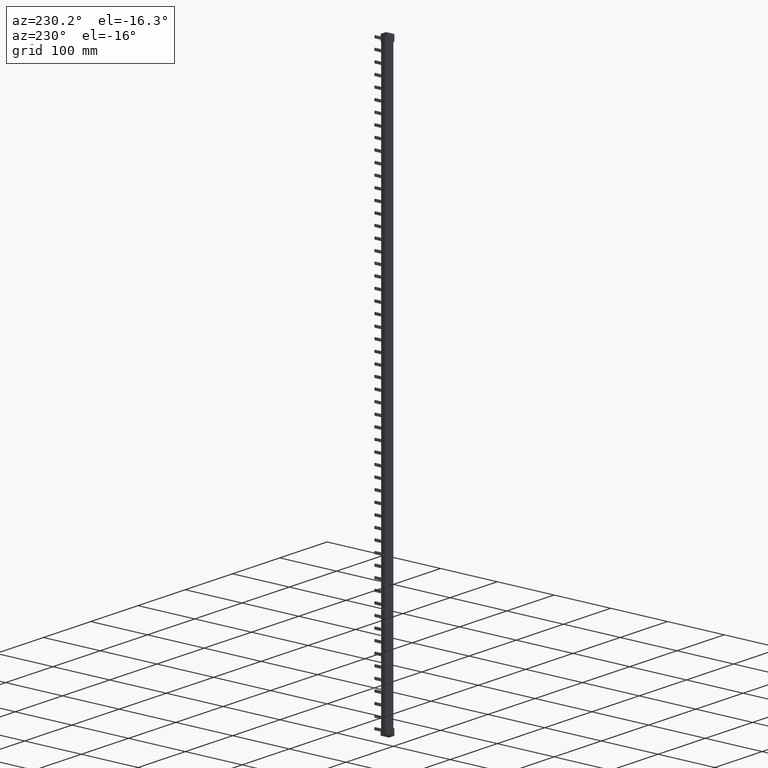
[diagram: clean part render]
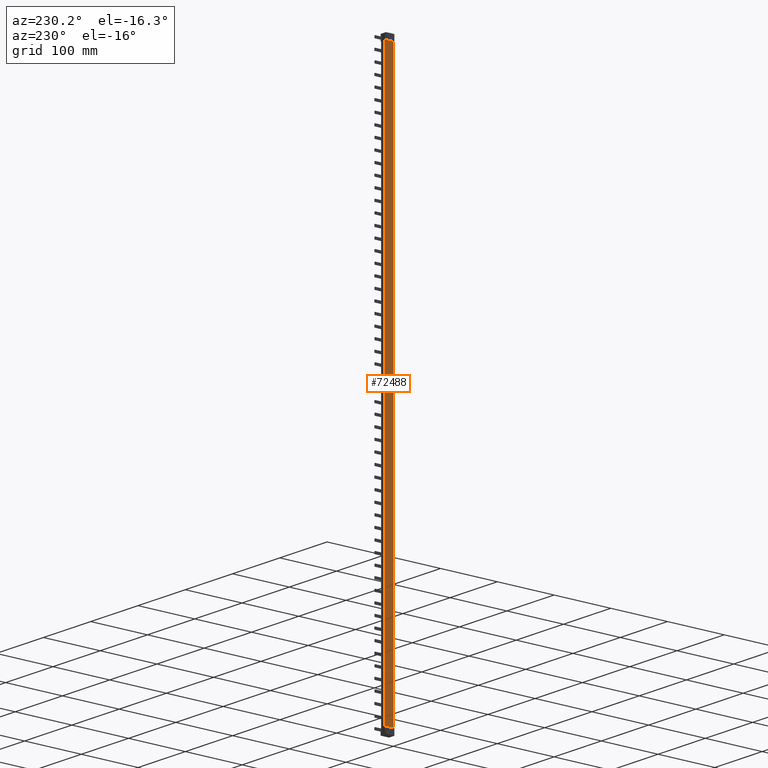
[diagram: same view with one face highlighted and labeled with its STEP entity id]
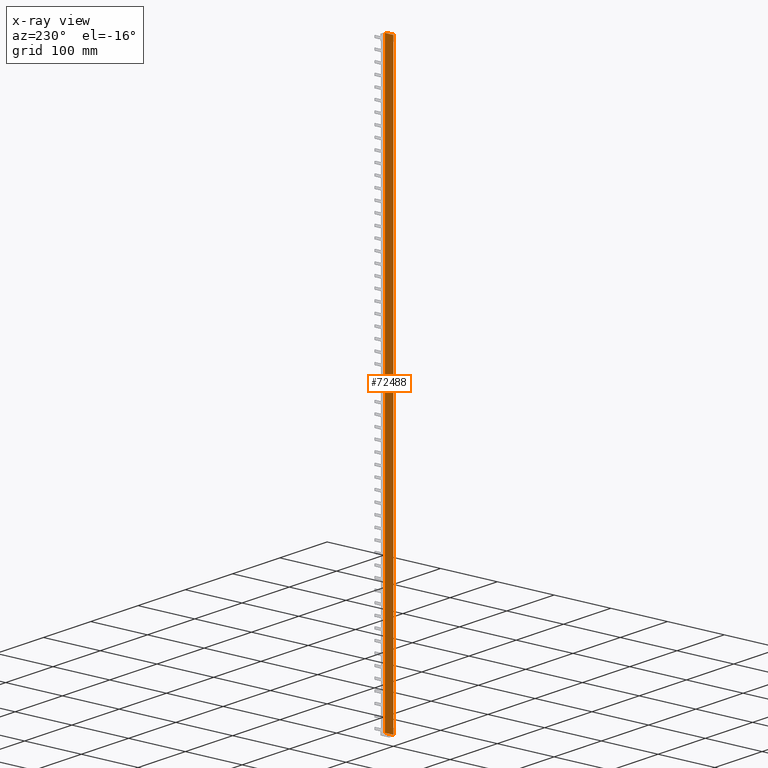
[diagram: x-ray of the same camera — body ghosted, the highlighted face saturated]
A machine part, auxiliary view. The second image highlights one B-rep face of the part: STEP entity #72488.
The next image is the same camera in x-ray: the body ghosted, the highlighted face saturated — about 0% of this face is hidden behind the body in this view.
In plain terms, the highlighted planar face has unit normal (1, -0, 0).
Its self-contained STEP definition (entity closure, byte-faithful):
#17976 = FACE_OUTER_BOUND ( 'NONE', #87323, .T. ) ;
#17988 = PLANE ( 'NONE',  #36670 ) ;
#17989 = CARTESIAN_POINT ( 'NONE',  ( 0.0000000000000000000, 14.99999999999998600, 217.7999999999999800 ) ) ;
#18037 = DIRECTION ( 'NONE',  ( 0.0000000000000000000, 0.0000000000000000000, -1.000000000000000000 ) ) ;
#18063 = DIRECTION ( 'NONE',  ( 1.000000000000000000, -0.0000000000000000000, 0.0000000000000000000 ) ) ;
#27888 = EDGE_CURVE ( 'NONE', #79143, #79174, #44846, .T. ) ;
#27932 = EDGE_CURVE ( 'NONE', #79137, #79112, #44902, .T. ) ;
#27979 = EDGE_CURVE ( 'NONE', #79137, #79111, #44953, .T. ) ;
#34513 = VECTOR ( 'NONE', #44851, 1000.000000000000000 ) ;
#34620 = VECTOR ( 'NONE', #44899, 1000.000000000000000 ) ;
#34697 = VECTOR ( 'NONE', #44959, 1000.000000000000000 ) ;
#36670 = AXIS2_PLACEMENT_3D ( 'NONE', #17989, #18063, #18037 ) ;
#39087 = B_SPLINE_CURVE_WITH_KNOTS ( 'NONE', 3,
 ( #82462, #82480, #82657, #82642 ),
 .UNSPECIFIED., .F., .F.,
 ( 4, 4 ),
 ( 3.222960364302612800E-016, 1.270203444159090100E-005 ),
 .UNSPECIFIED. ) ;
#39092 = B_SPLINE_CURVE_WITH_KNOTS ( 'NONE', 3,
 ( #82655, #82639, #82610, #82667 ),
 .UNSPECIFIED., .F., .F.,
 ( 4, 4 ),
 ( 3.551473622823408300E-017, 1.270203567234702200E-005 ),
 .UNSPECIFIED. ) ;
#39366 = ORIENTED_EDGE ( 'NONE', *, *, #85688, .T. ) ;
#39369 = ORIENTED_EDGE ( 'NONE', *, *, #85665, .F. ) ;
#39379 = ORIENTED_EDGE ( 'NONE', *, *, #27932, .F. ) ;
#39390 = ORIENTED_EDGE ( 'NONE', *, *, #27888, .F. ) ;
#39396 = ORIENTED_EDGE ( 'NONE', *, *, #85687, .T. ) ;
#39404 = ORIENTED_EDGE ( 'NONE', *, *, #85632, .F. ) ;
#39410 = ORIENTED_EDGE ( 'NONE', *, *, #85653, .F. ) ;
#39422 = ORIENTED_EDGE ( 'NONE', *, *, #27979, .T. ) ;
#44837 = CARTESIAN_POINT ( 'NONE',  ( 0.0000000000000000000, 14.99999999999998600, 217.8000000000000100 ) ) ;
#44846 = LINE ( 'NONE', #44837, #34513 ) ;
#44851 = DIRECTION ( 'NONE',  ( -0.0000000000000000000, -1.000000000000000000, -0.0000000000000000000 ) ) ;
#44899 = DIRECTION ( 'NONE',  ( -0.0000000000000000000, -0.0000000000000000000, 1.000000000000000000 ) ) ;
#44902 = LINE ( 'NONE', #44909, #34620 ) ;
#44909 = CARTESIAN_POINT ( 'NONE',  ( 0.0000000000000000000, 14.99999999999998600, 217.7999999999999800 ) ) ;
#44953 = LINE ( 'NONE', #44958, #34697 ) ;
#44958 = CARTESIAN_POINT ( 'NONE',  ( 0.0000000000000000000, 14.99999999999998600, -769.8000000000000700 ) ) ;
#44959 = DIRECTION ( 'NONE',  ( 0.0000000000000000000, -1.000000000000000000, -0.0000000000000000000 ) ) ;
#58230 = CARTESIAN_POINT ( 'NONE',  ( 0.0000000000000000000, 14.99999999999998600, -769.8000000000000700 ) ) ;
#58272 = CARTESIAN_POINT ( 'NONE',  ( 0.0000000000000000000, 13.60000000000009400, -769.8000000000000700 ) ) ;
#58274 = CARTESIAN_POINT ( 'NONE',  ( 0.0000000000000000000, 13.60000000000009400, 217.8000000000000100 ) ) ;
#58284 = CARTESIAN_POINT ( 'NONE',  ( 0.0000000000000000000, 14.99999999999998600, 217.7999999999999800 ) ) ;
#58312 = CARTESIAN_POINT ( 'NONE',  ( 0.0000000000000000000, 0.01270166587201605400, 217.8000000000000100 ) ) ;
#58348 = CARTESIAN_POINT ( 'NONE',  ( 3.446099988802169000E-011, 8.673617379884035500E-016, -769.7999030758454600 ) ) ;
#58402 = CARTESIAN_POINT ( 'NONE',  ( -1.232595164407830900E-029, -3.377156227183333400E-014, 217.7999030758261700 ) ) ;
#58410 = CARTESIAN_POINT ( 'NONE',  ( 0.0000000000000000000, 0.01270166464112152500, -769.7999999999997300 ) ) ;
#72488 = ADVANCED_FACE ( 'NONE', ( #17976 ), #17988, .F. ) ;
#79111 = VERTEX_POINT ( 'NONE', #58272 ) ;
#79112 = VERTEX_POINT ( 'NONE', #58284 ) ;
#79137 = VERTEX_POINT ( 'NONE', #58230 ) ;
#79143 = VERTEX_POINT ( 'NONE', #58274 ) ;
#79174 = VERTEX_POINT ( 'NONE', #58312 ) ;
#79175 = VERTEX_POINT ( 'NONE', #58348 ) ;
#79182 = VERTEX_POINT ( 'NONE', #58410 ) ;
#79201 = VERTEX_POINT ( 'NONE', #58402 ) ;
#80282 = VECTOR ( 'NONE', #82197, 1000.000000000000000 ) ;
#80295 = VECTOR ( 'NONE', #82417, 1000.000000000000000 ) ;
#80330 = VECTOR ( 'NONE', #82368, 1000.000000000000000 ) ;
#82054 = LINE ( 'NONE', #82210, #80282 ) ;
#82197 = DIRECTION ( 'NONE',  ( 0.0000000000000000000, 1.000000000000000000, 0.0000000000000000000 ) ) ;
#82210 = CARTESIAN_POINT ( 'NONE',  ( 0.0000000000000000000, 14.99999999999998600, -769.7999999999999500 ) ) ;
#82286 = LINE ( 'NONE', #82403, #80330 ) ;
#82368 = DIRECTION ( 'NONE',  ( 0.0000000000000000000, -1.000000000000000000, -0.0000000000000000000 ) ) ;
#82370 = LINE ( 'NONE', #82375, #80295 ) ;
#82375 = CARTESIAN_POINT ( 'NONE',  ( 0.0000000000000000000, 1.734723475976807100E-015, 217.7999999999999800 ) ) ;
#82403 = CARTESIAN_POINT ( 'NONE',  ( 0.0000000000000000000, 14.99999999999998600, 217.7999999999999800 ) ) ;
#82417 = DIRECTION ( 'NONE',  ( 0.0000000000000000000, 0.0000000000000000000, -1.000000000000000000 ) ) ;
#82462 = CARTESIAN_POINT ( 'NONE',  ( 0.0000000000000000000, 0.01270166464112152500, -769.7999999999997300 ) ) ;
#82480 = CARTESIAN_POINT ( 'NONE',  ( 0.0000000000000000000, 0.008467653160869999900, -769.7999999999997300 ) ) ;
#82610 = CARTESIAN_POINT ( 'NONE',  ( 0.0000000000000000000, 0.008467653979508956900, 217.7999999999999300 ) ) ;
#82639 = CARTESIAN_POINT ( 'NONE',  ( -2.465190328815661900E-029, 0.004233506532201680000, 217.7999684908489300 ) ) ;
#82642 = CARTESIAN_POINT ( 'NONE',  ( 3.446099988802169000E-011, 8.673617379884035500E-016, -769.7999030758454600 ) ) ;
#82655 = CARTESIAN_POINT ( 'NONE',  ( -1.232595164407830900E-029, -3.377156227183333400E-014, 217.7999030758261700 ) ) ;
#82657 = CARTESIAN_POINT ( 'NONE',  ( 0.0000000000000000000, 0.004233506122947607600, -769.7999684908546700 ) ) ;
#82667 = CARTESIAN_POINT ( 'NONE',  ( 0.0000000000000000000, 0.01270166587201605400, 217.8000000000000100 ) ) ;
#85632 = EDGE_CURVE ( 'NONE', #79182, #79111, #82054, .T. ) ;
#85653 = EDGE_CURVE ( 'NONE', #79201, #79175, #82370, .T. ) ;
#85665 = EDGE_CURVE ( 'NONE', #79112, #79143, #82286, .T. ) ;
#85687 = EDGE_CURVE ( 'NONE', #79182, #79175, #39087, .T. ) ;
#85688 = EDGE_CURVE ( 'NONE', #79201, #79174, #39092, .T. ) ;
#87323 = EDGE_LOOP ( 'NONE', ( #39369, #39379, #39422, #39404, #39396, #39410, #39366, #39390 ) ) ;